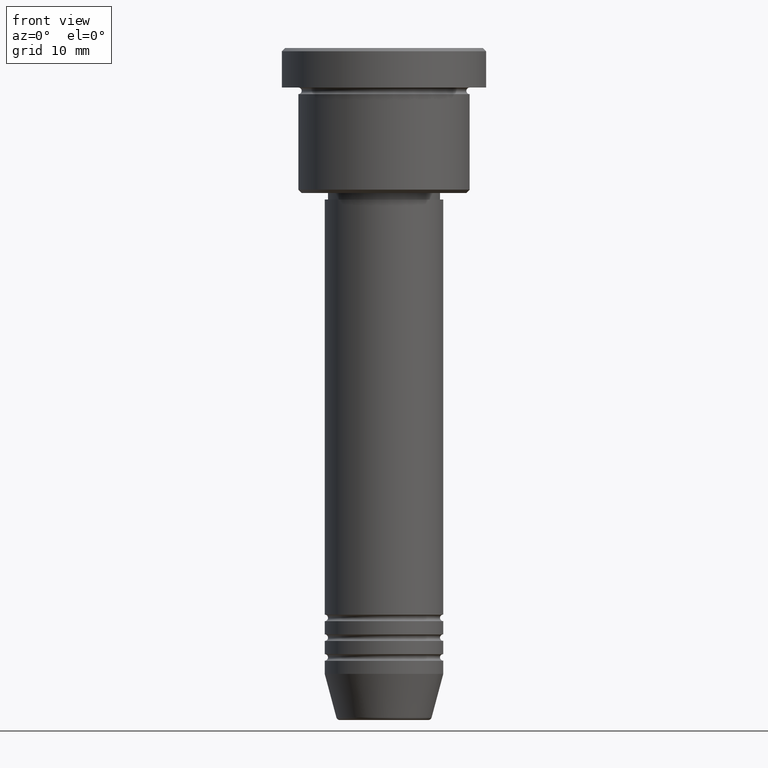
[diagram: clean part render]
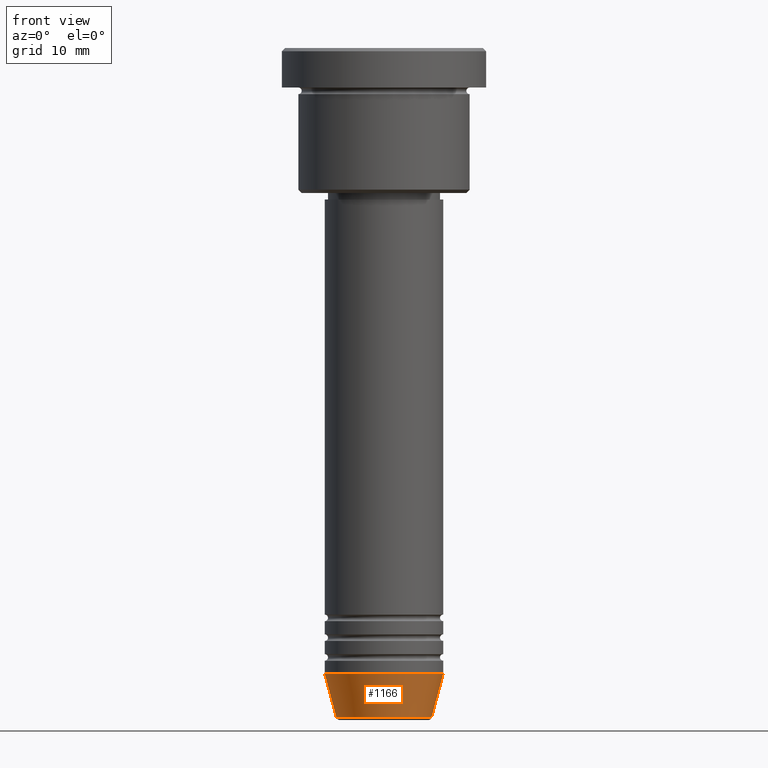
[diagram: same view with one face highlighted and labeled with its STEP entity id]
A machine part, front view. The second image highlights one B-rep face of the part: STEP entity #1166.
In plain terms, the highlighted conical surface has half-angle 15 deg.
Its self-contained STEP definition (entity closure, byte-faithful):
#42 = CARTESIAN_POINT ( 'NONE',  ( -9.000000000000000000, 1.102182119232617714E-15, -95.00000000000000000 ) ) ;
#53 = AXIS2_PLACEMENT_3D ( 'NONE', #344, #1175, #1080 ) ;
#80 = EDGE_CURVE ( 'NONE', #367, #90, #1083, .T. ) ;
#90 = VERTEX_POINT ( 'NONE', #979 ) ;
#132 = VECTOR ( 'NONE', #1052, 1000.000000000000000 ) ;
#205 = CARTESIAN_POINT ( 'NONE',  ( 0.000000000000000000, 0.000000000000000000, -95.00000000000000000 ) ) ;
#217 = EDGE_CURVE ( 'NONE', #718, #745, #1177, .T. ) ;
#224 = ORIENTED_EDGE ( 'NONE', *, *, #80, .T. ) ;
#274 = DIRECTION ( 'NONE',  ( 1.000000000000000000, 0.000000000000000000, 0.000000000000000000 ) ) ;
#282 = LINE ( 'NONE', #637, #486 ) ;
#301 = CARTESIAN_POINT ( 'NONE',  ( -9.000000000000000000, 1.102182119232617714E-15, -95.00000000000000000 ) ) ;
#344 = CARTESIAN_POINT ( 'NONE',  ( 0.000000000000000000, 0.000000000000000000, -101.6294095225512706 ) ) ;
#367 = VERTEX_POINT ( 'NONE', #673 ) ;
#408 = ORIENTED_EDGE ( 'NONE', *, *, #217, .F. ) ;
#486 = VECTOR ( 'NONE', #1009, 1000.000000000000000 ) ;
#556 = DIRECTION ( 'NONE',  ( -0.000000000000000000, -0.000000000000000000, 1.000000000000000000 ) ) ;
#570 = ORIENTED_EDGE ( 'NONE', *, *, #707, .F. ) ;
#637 = CARTESIAN_POINT ( 'NONE',  ( 9.000000000000000000, 0.000000000000000000, -95.00000000000000000 ) ) ;
#673 = CARTESIAN_POINT ( 'NONE',  ( -7.223655072137189492, 9.934123627281765110E-16, -101.6294095225512706 ) ) ;
#678 = FACE_OUTER_BOUND ( 'NONE', #728, .T. ) ;
#685 = EDGE_CURVE ( 'NONE', #90, #745, #282, .T. ) ;
#707 = EDGE_CURVE ( 'NONE', #367, #718, #857, .T. ) ;
#718 = VERTEX_POINT ( 'NONE', #42 ) ;
#728 = EDGE_LOOP ( 'NONE', ( #570, #224, #803, #408 ) ) ;
#737 = AXIS2_PLACEMENT_3D ( 'NONE', #205, #556, #274 ) ;
#745 = VERTEX_POINT ( 'NONE', #1136 ) ;
#752 = DIRECTION ( 'NONE',  ( 1.000000000000000000, 0.000000000000000000, 0.000000000000000000 ) ) ;
#803 = ORIENTED_EDGE ( 'NONE', *, *, #685, .T. ) ;
#842 = DIRECTION ( 'NONE',  ( -0.000000000000000000, -0.000000000000000000, 1.000000000000000000 ) ) ;
#857 = LINE ( 'NONE', #301, #132 ) ;
#941 = CARTESIAN_POINT ( 'NONE',  ( 0.000000000000000000, 0.000000000000000000, -95.00000000000000000 ) ) ;
#979 = CARTESIAN_POINT ( 'NONE',  ( 7.223655072137188604, 0.000000000000000000, -101.6294095225512706 ) ) ;
#1000 = AXIS2_PLACEMENT_3D ( 'NONE', #941, #842, #752 ) ;
#1009 = DIRECTION ( 'NONE',  ( 0.2588190451025213501, 0.000000000000000000, 0.9659258262890680902 ) ) ;
#1052 = DIRECTION ( 'NONE',  ( -0.2588190451025213501, 3.169619151431772337E-17, 0.9659258262890680902 ) ) ;
#1080 = DIRECTION ( 'NONE',  ( 1.000000000000000000, 0.000000000000000000, 0.000000000000000000 ) ) ;
#1083 = CIRCLE ( 'NONE', #53, 7.223655072137188604 ) ;
#1124 = CONICAL_SURFACE ( 'NONE', #1000, 9.000000000000000000, 0.2617993877991500740 ) ;
#1136 = CARTESIAN_POINT ( 'NONE',  ( 9.000000000000000000, 0.000000000000000000, -95.00000000000000000 ) ) ;
#1166 = ADVANCED_FACE ( 'NONE', ( #678 ), #1124, .T. ) ;
#1175 = DIRECTION ( 'NONE',  ( -0.000000000000000000, -0.000000000000000000, 1.000000000000000000 ) ) ;
#1177 = CIRCLE ( 'NONE', #737, 9.000000000000000000 ) ;